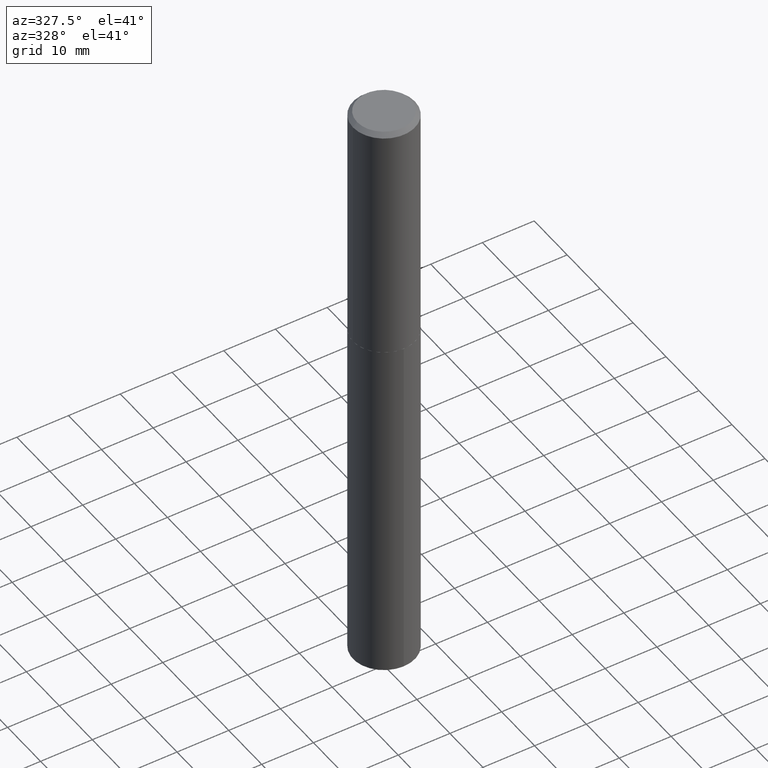
[diagram: clean part render]
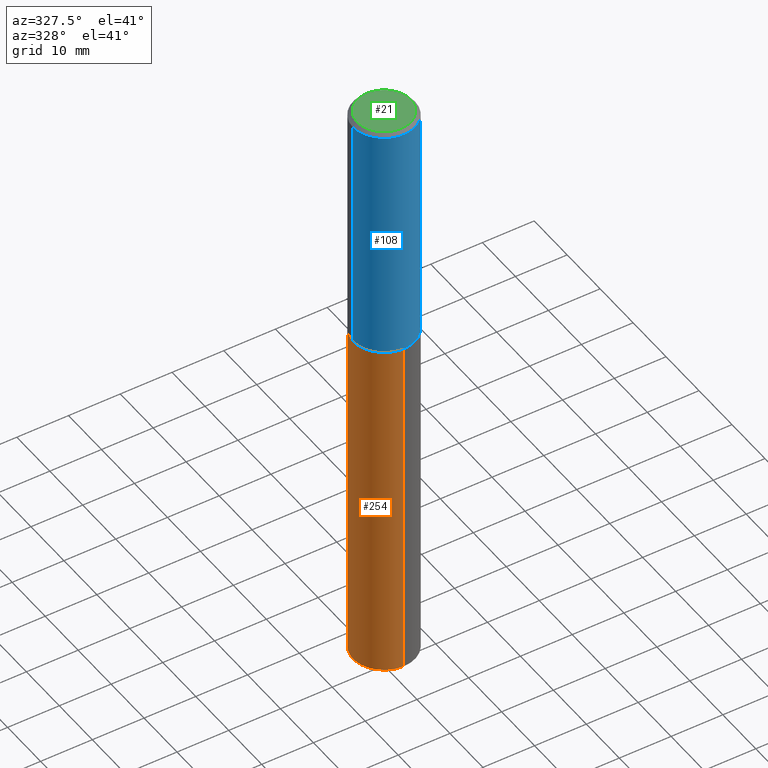
[diagram: same view with three faces highlighted in distinct colors, each labeled with its STEP entity id]
A machine part, auxiliary view with three faces highlighted in distinct colors.
Their STEP definitions:

[orange] entity #254 — the highlighted cylindrical surface (partial cylindrical patch) has radius 5.9995 mm, axis along (-0, 0, 1).
#1 = LINE ( 'NONE', #293, #345 ) ;
#23 = DIRECTION ( 'NONE',  ( -2.445731720170191402E-29, 3.491104831052412813E-15, 1.000000000000000000 ) ) ;
#32 = FACE_OUTER_BOUND ( 'NONE', #112, .T. ) ;
#33 = DIRECTION ( 'NONE',  ( -2.445731720170191402E-29, 3.491104831052412813E-15, 1.000000000000000000 ) ) ;
#34 = VECTOR ( 'NONE', #33, 39.37007874015748143 ) ;
#39 = CARTESIAN_POINT ( 'NONE',  ( 1.678301941865468215E-15, 0.2361999999999935540, -1.850700000000000900 ) ) ;
#42 = EDGE_CURVE ( 'NONE', #257, #328, #1, .T. ) ;
#57 = CIRCLE ( 'NONE', #200, 0.2361999999999999933 ) ;
#62 = DIRECTION ( 'NONE',  ( -2.445731720170191122E-29, 3.491104831052412813E-15, 1.000000000000000000 ) ) ;
#67 = DIRECTION ( 'NONE',  ( -6.982962677686265922E-15, -1.000000000000000000, 4.626330217890369336E-15 ) ) ;
#75 = ORIENTED_EDGE ( 'NONE', *, *, #228, .F. ) ;
#93 = CARTESIAN_POINT ( 'NONE',  ( -1.649375784469385099E-15, -0.2362000000000159805, -4.550569005457735905 ) ) ;
#112 = EDGE_LOOP ( 'NONE', ( #193, #383, #379, #75 ) ) ;
#124 = CARTESIAN_POINT ( 'NONE',  ( -1.649375784469450574E-15, -0.2362000000000064603, -1.850699999999999124 ) ) ;
#128 = DIRECTION ( 'NONE',  ( -6.982962677686265922E-15, -1.000000000000000000, 3.469747663417777397E-15 ) ) ;
#152 = DIRECTION ( 'NONE',  ( -2.445731720170191122E-29, 3.491104831052412813E-15, 1.000000000000000000 ) ) ;
#156 = CARTESIAN_POINT ( 'NONE',  ( 1.112898438655916629E-28, -1.588721024195918932E-14, -4.550569005457737681 ) ) ;
#157 = AXIS2_PLACEMENT_3D ( 'NONE', #237, #304, #128 ) ;
#180 = CARTESIAN_POINT ( 'NONE',  ( -1.649375784469450574E-15, -0.2362000000000064603, -1.850699999999999124 ) ) ;
#182 = CARTESIAN_POINT ( 'NONE',  ( 4.525829119606832626E-29, -6.461684513797009689E-15, -1.850700000000000012 ) ) ;
#193 = ORIENTED_EDGE ( 'NONE', *, *, #42, .F. ) ;
#200 = AXIS2_PLACEMENT_3D ( 'NONE', #182, #62, #273 ) ;
#228 = EDGE_CURVE ( 'NONE', #328, #251, #57, .T. ) ;
#237 = CARTESIAN_POINT ( 'NONE',  ( 4.525829119606832626E-29, -6.461684513797009689E-15, -1.850700000000000012 ) ) ;
#247 = CIRCLE ( 'NONE', #331, 0.2361999999999999933 ) ;
#251 = VERTEX_POINT ( 'NONE', #124 ) ;
#254 = ADVANCED_FACE ( 'NONE', ( #32 ), #367, .T. ) ;
#257 = VERTEX_POINT ( 'NONE', #373 ) ;
#273 = DIRECTION ( 'NONE',  ( -6.982962677686265922E-15, -1.000000000000000000, 3.469747663417777397E-15 ) ) ;
#278 = EDGE_CURVE ( 'NONE', #349, #251, #340, .T. ) ;
#292 = EDGE_CURVE ( 'NONE', #257, #349, #247, .T. ) ;
#293 = CARTESIAN_POINT ( 'NONE',  ( 1.678301941865401754E-15, 0.2361999999999935540, -1.850700000000000900 ) ) ;
#304 = DIRECTION ( 'NONE',  ( -2.445731720170191122E-29, 3.491104831052412813E-15, 1.000000000000000000 ) ) ;
#328 = VERTEX_POINT ( 'NONE', #39 ) ;
#331 = AXIS2_PLACEMENT_3D ( 'NONE', #156, #152, #67 ) ;
#340 = LINE ( 'NONE', #180, #34 ) ;
#345 = VECTOR ( 'NONE', #23, 39.37007874015748143 ) ;
#349 = VERTEX_POINT ( 'NONE', #93 ) ;
#367 = CYLINDRICAL_SURFACE ( 'NONE', #157, 0.2361999999999999933 ) ;
#373 = CARTESIAN_POINT ( 'NONE',  ( 1.678301941865468412E-15, 0.2361999999999842281, -4.550569005457738569 ) ) ;
#379 = ORIENTED_EDGE ( 'NONE', *, *, #278, .T. ) ;
#383 = ORIENTED_EDGE ( 'NONE', *, *, #292, .T. ) ;

[blue] entity #108 — the highlighted cylindrical surface (partial cylindrical patch) has radius 5.9995 mm, axis along (-0, 0, 1).
#8 = DIRECTION ( 'NONE',  ( -2.445468806185136877E-29, 3.491481338843145188E-15, 1.000000000000000000 ) ) ;
#17 = VERTEX_POINT ( 'NONE', #319 ) ;
#20 = ORIENTED_EDGE ( 'NONE', *, *, #343, .F. ) ;
#38 = LINE ( 'NONE', #368, #153 ) ;
#65 = LINE ( 'NONE', #184, #110 ) ;
#69 = AXIS2_PLACEMENT_3D ( 'NONE', #227, #260, #264 ) ;
#78 = AXIS2_PLACEMENT_3D ( 'NONE', #360, #150, #118 ) ;
#79 = EDGE_CURVE ( 'NONE', #139, #238, #256, .T. ) ;
#92 = FACE_OUTER_BOUND ( 'NONE', #136, .T. ) ;
#108 = ADVANCED_FACE ( 'NONE', ( #92 ), #172, .T. ) ;
#110 = VECTOR ( 'NONE', #8, 39.37007874015748143 ) ;
#115 = CARTESIAN_POINT ( 'NONE',  ( 0.2361999999999999933, -1.758484576308345231E-15, -0.03125000000000022898 ) ) ;
#118 = DIRECTION ( 'NONE',  ( 1.000000000000000000, -6.982962677686269077E-15, 0.000000000000000000 ) ) ;
#127 = VERTEX_POINT ( 'NONE', #115 ) ;
#131 = CIRCLE ( 'NONE', #194, 0.2361999999999999933 ) ;
#136 = EDGE_LOOP ( 'NONE', ( #253, #219, #283, #20 ) ) ;
#139 = VERTEX_POINT ( 'NONE', #294 ) ;
#150 = DIRECTION ( 'NONE',  ( -2.445468806185136597E-29, 3.491481338843145583E-15, 1.000000000000000000 ) ) ;
#153 = VECTOR ( 'NONE', #179, 39.37007874015748143 ) ;
#154 = CARTESIAN_POINT ( 'NONE',  ( 7.642090019328607041E-31, -1.091087918388490883E-16, -0.03125000000000022898 ) ) ;
#172 = CYLINDRICAL_SURFACE ( 'NONE', #69, 0.2362000000000001321 ) ;
#179 = DIRECTION ( 'NONE',  ( -2.445468806185136877E-29, 3.491481338843145188E-15, 1.000000000000000000 ) ) ;
#184 = CARTESIAN_POINT ( 'NONE',  ( -0.2362000000000001321, 1.678301941865357577E-15, -1.161852468318209457E-29 ) ) ;
#189 = EDGE_CURVE ( 'NONE', #238, #127, #38, .T. ) ;
#194 = AXIS2_PLACEMENT_3D ( 'NONE', #154, #268, #241 ) ;
#213 = CARTESIAN_POINT ( 'NONE',  ( 0.2362000000000002709, -8.109314557597087077E-15, -1.850200000000000067 ) ) ;
#219 = ORIENTED_EDGE ( 'NONE', *, *, #79, .T. ) ;
#227 = CARTESIAN_POINT ( 'NONE',  ( 0.000000000000000000, 0.000000000000000000, 0.000000000000000000 ) ) ;
#238 = VERTEX_POINT ( 'NONE', #213 ) ;
#241 = DIRECTION ( 'NONE',  ( 1.000000000000000000, -6.982962677686266711E-15, 0.000000000000000000 ) ) ;
#244 = EDGE_CURVE ( 'NONE', #139, #17, #65, .T. ) ;
#253 = ORIENTED_EDGE ( 'NONE', *, *, #244, .F. ) ;
#256 = CIRCLE ( 'NONE', #78, 0.2362000000000002709 ) ;
#260 = DIRECTION ( 'NONE',  ( -2.445468806185136597E-29, 3.491481338843145583E-15, 1.000000000000000000 ) ) ;
#264 = DIRECTION ( 'NONE',  ( 1.000000000000000000, -6.982962677686266711E-15, 4.876176775795936353E-29 ) ) ;
#268 = DIRECTION ( 'NONE',  ( -2.445468806185136597E-29, 3.491481338843145583E-15, 1.000000000000000000 ) ) ;
#283 = ORIENTED_EDGE ( 'NONE', *, *, #189, .T. ) ;
#294 = CARTESIAN_POINT ( 'NONE',  ( -0.2362000000000002709, -4.781636831262230214E-15, -1.850200000000000067 ) ) ;
#319 = CARTESIAN_POINT ( 'NONE',  ( -0.2361999999999999933, -1.606221840617860474E-15, -0.03125000000000022898 ) ) ;
#343 = EDGE_CURVE ( 'NONE', #17, #127, #131, .T. ) ;
#360 = CARTESIAN_POINT ( 'NONE',  ( 4.524606385203739825E-29, -6.459938773127588186E-15, -1.850200000000000067 ) ) ;
#368 = CARTESIAN_POINT ( 'NONE',  ( 0.2362000000000001321, -1.649375784469497117E-15, 1.151752954443000789E-29 ) ) ;

[green] entity #21 — the highlighted planar face has unit normal (0, -0, -1).
#2 = EDGE_CURVE ( 'NONE', #341, #348, #40, .T. ) ;
#21 = ADVANCED_FACE ( 'NONE', ( #357 ), #188, .F. ) ;
#25 = EDGE_CURVE ( 'NONE', #348, #341, #353, .T. ) ;
#40 = CIRCLE ( 'NONE', #359, 0.2049499999999999933 ) ;
#44 = DIRECTION ( 'NONE',  ( -2.445468806185136597E-29, 3.491481338843145583E-15, 1.000000000000000000 ) ) ;
#51 = EDGE_LOOP ( 'NONE', ( #381, #222 ) ) ;
#52 = DIRECTION ( 'NONE',  ( 2.438088387897960049E-29, -3.491481338843145188E-15, -1.000000000000000000 ) ) ;
#129 = CARTESIAN_POINT ( 'NONE',  ( -0.2049499999999999933, 1.485712596711223663E-15, 4.818985154634640807E-18 ) ) ;
#134 = DIRECTION ( 'NONE',  ( -1.000000000000000000, 6.982962677686265922E-15, -4.876176775795935793E-29 ) ) ;
#161 = DIRECTION ( 'NONE',  ( 1.000000000000000000, -6.982962677686266711E-15, 4.876118559169178830E-29 ) ) ;
#167 = DIRECTION ( 'NONE',  ( -2.445468806185136597E-29, 3.491481338843145583E-15, 1.000000000000000000 ) ) ;
#188 = PLANE ( 'NONE',  #215 ) ;
#198 = CARTESIAN_POINT ( 'NONE',  ( -1.178467787315321149E-46, 1.682539673960460649E-32, 4.818985154644839761E-18 ) ) ;
#215 = AXIS2_PLACEMENT_3D ( 'NONE', #321, #52, #134 ) ;
#217 = DIRECTION ( 'NONE',  ( 1.000000000000000000, -6.982962677686266711E-15, 4.876118559169178830E-29 ) ) ;
#222 = ORIENTED_EDGE ( 'NONE', *, *, #2, .T. ) ;
#310 = CARTESIAN_POINT ( 'NONE',  ( -1.178467787315321149E-46, 1.682539673960460649E-32, 4.818985154644839761E-18 ) ) ;
#321 = CARTESIAN_POINT ( 'NONE',  ( -5.892338936576605744E-47, 8.412698369802303245E-33, 2.409492577322419881E-18 ) ) ;
#335 = CARTESIAN_POINT ( 'NONE',  ( 0.2049499999999999933, -1.567808741777880040E-15, 4.818985154655325294E-18 ) ) ;
#341 = VERTEX_POINT ( 'NONE', #335 ) ;
#348 = VERTEX_POINT ( 'NONE', #129 ) ;
#353 = CIRCLE ( 'NONE', #387, 0.2049499999999999933 ) ;
#357 = FACE_OUTER_BOUND ( 'NONE', #51, .T. ) ;
#359 = AXIS2_PLACEMENT_3D ( 'NONE', #198, #167, #217 ) ;
#381 = ORIENTED_EDGE ( 'NONE', *, *, #25, .T. ) ;
#387 = AXIS2_PLACEMENT_3D ( 'NONE', #310, #44, #161 ) ;